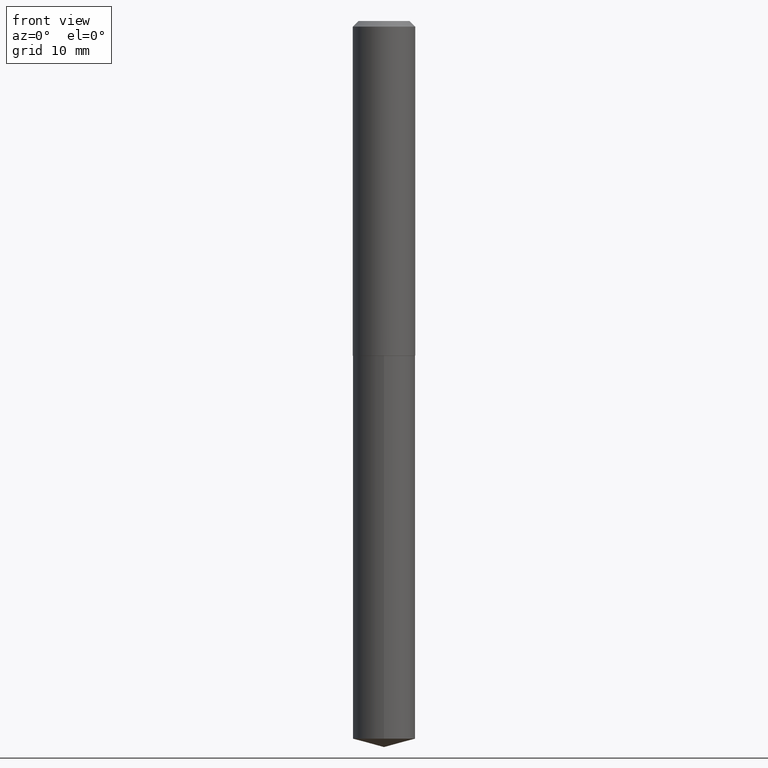
[diagram: clean part render]
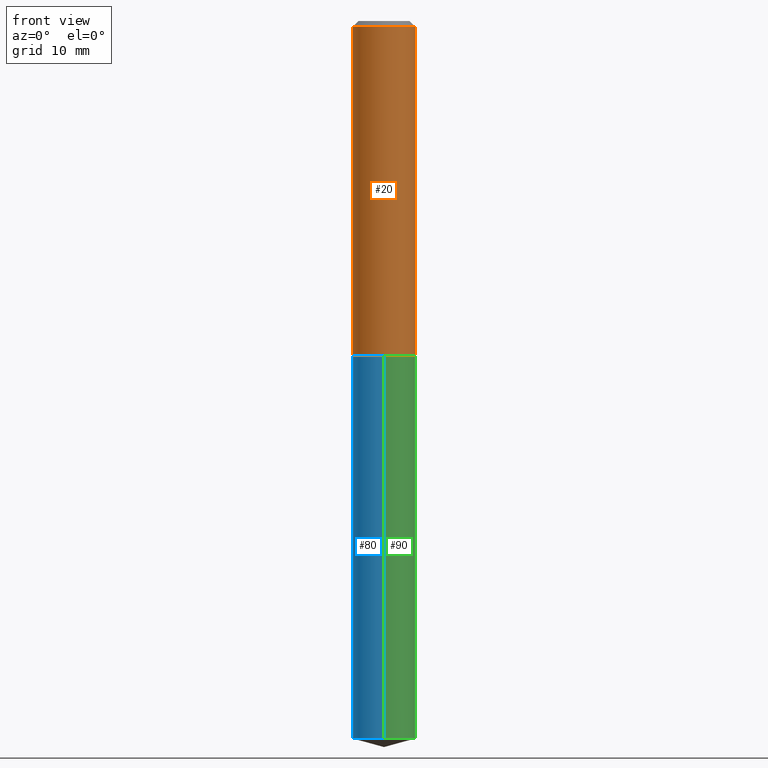
[diagram: same view with three faces highlighted in distinct colors, each labeled with its STEP entity id]
A machine part, front view with three faces highlighted in distinct colors.
Their STEP definitions:

[orange] entity #20 — the highlighted cylindrical surface (edge-blend (fillet) strip) has radius 4.3663 mm, axis along (-0, 0, 1).
#2 = DIRECTION ( 'NONE',  ( 1.000000000000000000, -6.982962677686266711E-15, 4.876176775795936353E-29 ) ) ;
#7 = CARTESIAN_POINT ( 'NONE',  ( 0.1719000000000002193, -7.636218836183839889E-15, -1.843299999999999939 ) ) ;
#20 = ADVANCED_FACE ( 'NONE', ( #214 ), #183, .T. ) ;
#26 = CARTESIAN_POINT ( 'NONE',  ( 0.1719000000000001083, -1.200371284294270030E-15, 8.382147877593220085E-30 ) ) ;
#39 = CARTESIAN_POINT ( 'NONE',  ( -0.1719000000000002193, -5.214424589117957264E-15, -1.843299999999999939 ) ) ;
#51 = DIRECTION ( 'NONE',  ( 1.000000000000000000, -6.982962677686265922E-15, 0.000000000000000000 ) ) ;
#53 = DIRECTION ( 'NONE',  ( -2.445468806185136877E-29, 3.491481338843145188E-15, 1.000000000000000000 ) ) ;
#55 = AXIS2_PLACEMENT_3D ( 'NONE', #307, #153, #2 ) ;
#63 = VECTOR ( 'NONE', #53, 39.37007874015748143 ) ;
#75 = VECTOR ( 'NONE', #253, 39.37007874015748143 ) ;
#92 = DIRECTION ( 'NONE',  ( 1.000000000000000000, -6.982962677686263555E-15, 0.000000000000000000 ) ) ;
#94 = EDGE_CURVE ( 'NONE', #286, #176, #234, .T. ) ;
#95 = AXIS2_PLACEMENT_3D ( 'NONE', #147, #341, #92 ) ;
#107 = EDGE_CURVE ( 'NONE', #239, #176, #354, .T. ) ;
#117 = AXIS2_PLACEMENT_3D ( 'NONE', #291, #238, #51 ) ;
#147 = CARTESIAN_POINT ( 'NONE',  ( 4.507732650441062191E-29, -6.435847551889570648E-15, -1.843299999999999939 ) ) ;
#153 = DIRECTION ( 'NONE',  ( -2.445468806185136597E-29, 3.491481338843145583E-15, 1.000000000000000000 ) ) ;
#176 = VERTEX_POINT ( 'NONE', #245 ) ;
#183 = CYLINDRICAL_SURFACE ( 'NONE', #55, 0.1719000000000001083 ) ;
#214 = FACE_OUTER_BOUND ( 'NONE', #330, .T. ) ;
#215 = CARTESIAN_POINT ( 'NONE',  ( -0.1719000000000001083, 1.221422962771612989E-15, -8.455649420148188785E-30 ) ) ;
#234 = CIRCLE ( 'NONE', #117, 0.1719000000000000250 ) ;
#238 = DIRECTION ( 'NONE',  ( -2.445468806185136597E-29, 3.491481338843145583E-15, 1.000000000000000000 ) ) ;
#239 = VERTEX_POINT ( 'NONE', #7 ) ;
#245 = CARTESIAN_POINT ( 'NONE',  ( 0.1719000000000000250, -1.309480076133118342E-15, -0.03125000000000021511 ) ) ;
#253 = DIRECTION ( 'NONE',  ( -2.445468806185136877E-29, 3.491481338843145188E-15, 1.000000000000000000 ) ) ;
#254 = EDGE_CURVE ( 'NONE', #353, #239, #304, .T. ) ;
#272 = ORIENTED_EDGE ( 'NONE', *, *, #94, .F. ) ;
#278 = LINE ( 'NONE', #215, #75 ) ;
#286 = VERTEX_POINT ( 'NONE', #365 ) ;
#291 = CARTESIAN_POINT ( 'NONE',  ( 7.642090019328604414E-31, -1.091087918388490513E-16, -0.03125000000000021511 ) ) ;
#304 = CIRCLE ( 'NONE', #95, 0.1719000000000002193 ) ;
#307 = CARTESIAN_POINT ( 'NONE',  ( 0.000000000000000000, 0.000000000000000000, 0.000000000000000000 ) ) ;
#322 = ORIENTED_EDGE ( 'NONE', *, *, #107, .T. ) ;
#330 = EDGE_LOOP ( 'NONE', ( #384, #358, #322, #272 ) ) ;
#341 = DIRECTION ( 'NONE',  ( -2.445468806185136597E-29, 3.491481338843145583E-15, 1.000000000000000000 ) ) ;
#342 = EDGE_CURVE ( 'NONE', #353, #286, #278, .T. ) ;
#353 = VERTEX_POINT ( 'NONE', #39 ) ;
#354 = LINE ( 'NONE', #26, #63 ) ;
#358 = ORIENTED_EDGE ( 'NONE', *, *, #254, .T. ) ;
#365 = CARTESIAN_POINT ( 'NONE',  ( -0.1719000000000000250, -2.051055209092595702E-15, -0.03125000000000021511 ) ) ;
#384 = ORIENTED_EDGE ( 'NONE', *, *, #342, .F. ) ;

[blue] entity #80 — the highlighted cylindrical surface (edge-blend (fillet) strip) has radius 4.3663 mm, axis along (-0, 0, 1).
#16 = EDGE_CURVE ( 'NONE', #91, #299, #282, .T. ) ;
#41 = VECTOR ( 'NONE', #219, 39.37007874015748143 ) ;
#49 = CARTESIAN_POINT ( 'NONE',  ( 1.221422962771708835E-15, 0.1718999999999935302, -1.843800000000000328 ) ) ;
#59 = LINE ( 'NONE', #177, #41 ) ;
#66 = CARTESIAN_POINT ( 'NONE',  ( 4.508955384844154993E-29, -6.437593292558991362E-15, -1.843799999999999883 ) ) ;
#80 = ADVANCED_FACE ( 'NONE', ( #356 ), #201, .T. ) ;
#91 = VERTEX_POINT ( 'NONE', #49 ) ;
#108 = CARTESIAN_POINT ( 'NONE',  ( 4.508955384844154993E-29, -6.437593292558991362E-15, -1.843799999999999883 ) ) ;
#112 = ORIENTED_EDGE ( 'NONE', *, *, #164, .T. ) ;
#118 = AXIS2_PLACEMENT_3D ( 'NONE', #198, #166, #343 ) ;
#151 = CARTESIAN_POINT ( 'NONE',  ( 1.221422962771708441E-15, 0.1718999999999861195, -3.953939533821090535 ) ) ;
#162 = CARTESIAN_POINT ( 'NONE',  ( -1.200371284294171620E-15, -0.1719000000000137363, -3.953939533821089647 ) ) ;
#164 = EDGE_CURVE ( 'NONE', #360, #299, #59, .T. ) ;
#165 = EDGE_LOOP ( 'NONE', ( #210, #236, #112, #212 ) ) ;
#166 = DIRECTION ( 'NONE',  ( -2.445467360161043829E-29, 3.491483409631948923E-15, 1.000000000000000000 ) ) ;
#177 = CARTESIAN_POINT ( 'NONE',  ( -1.200371284294223882E-15, -0.1719000000000064365, -1.843799999999999439 ) ) ;
#180 = CARTESIAN_POINT ( 'NONE',  ( -1.200371284294223882E-15, -0.1719000000000064365, -1.843799999999999439 ) ) ;
#184 = CARTESIAN_POINT ( 'NONE',  ( 1.221422962771656968E-15, 0.1718999999999935302, -1.843800000000000328 ) ) ;
#186 = EDGE_CURVE ( 'NONE', #193, #91, #252, .T. ) ;
#189 = DIRECTION ( 'NONE',  ( -2.445467360161043829E-29, 3.491483409631948923E-15, 1.000000000000000000 ) ) ;
#193 = VERTEX_POINT ( 'NONE', #151 ) ;
#198 = CARTESIAN_POINT ( 'NONE',  ( 9.669232740189070983E-29, -1.380511046690382342E-14, -3.953939533821090091 ) ) ;
#201 = CYLINDRICAL_SURFACE ( 'NONE', #327, 0.1718999999999999695 ) ;
#210 = ORIENTED_EDGE ( 'NONE', *, *, #186, .F. ) ;
#212 = ORIENTED_EDGE ( 'NONE', *, *, #16, .F. ) ;
#219 = DIRECTION ( 'NONE',  ( -2.445467360161043829E-29, 3.491483409631948923E-15, 1.000000000000000000 ) ) ;
#227 = AXIS2_PLACEMENT_3D ( 'NONE', #66, #189, #280 ) ;
#236 = ORIENTED_EDGE ( 'NONE', *, *, #366, .T. ) ;
#252 = LINE ( 'NONE', #184, #262 ) ;
#262 = VECTOR ( 'NONE', #270, 39.37007874015748143 ) ;
#270 = DIRECTION ( 'NONE',  ( -2.445467360161043829E-29, 3.491483409631948923E-15, 1.000000000000000000 ) ) ;
#280 = DIRECTION ( 'NONE',  ( -6.982962677686266711E-15, -1.000000000000000000, 3.178415350394722068E-15 ) ) ;
#282 = CIRCLE ( 'NONE', #227, 0.1718999999999999695 ) ;
#289 = CIRCLE ( 'NONE', #118, 0.1718999999999999695 ) ;
#296 = DIRECTION ( 'NONE',  ( -2.445467360161043829E-29, 3.491483409631948923E-15, 1.000000000000000000 ) ) ;
#299 = VERTEX_POINT ( 'NONE', #180 ) ;
#327 = AXIS2_PLACEMENT_3D ( 'NONE', #108, #296, #352 ) ;
#343 = DIRECTION ( 'NONE',  ( -6.982962677686266711E-15, -1.000000000000000000, 3.178415350394722068E-15 ) ) ;
#352 = DIRECTION ( 'NONE',  ( -6.982962677686266711E-15, -1.000000000000000000, 3.178415350394722068E-15 ) ) ;
#356 = FACE_OUTER_BOUND ( 'NONE', #165, .T. ) ;
#360 = VERTEX_POINT ( 'NONE', #162 ) ;
#366 = EDGE_CURVE ( 'NONE', #193, #360, #289, .T. ) ;

[green] entity #90 — the highlighted cylindrical surface (edge-blend (fillet) strip) has radius 4.3663 mm, axis along (-0, 0, 1).
#14 = ORIENTED_EDGE ( 'NONE', *, *, #287, .F. ) ;
#41 = VECTOR ( 'NONE', #219, 39.37007874015748143 ) ;
#49 = CARTESIAN_POINT ( 'NONE',  ( 1.221422962771708835E-15, 0.1718999999999935302, -1.843800000000000328 ) ) ;
#59 = LINE ( 'NONE', #177, #41 ) ;
#60 = ORIENTED_EDGE ( 'NONE', *, *, #186, .T. ) ;
#87 = CARTESIAN_POINT ( 'NONE',  ( 4.508955384844154993E-29, -6.437593292558991362E-15, -1.843799999999999883 ) ) ;
#88 = ORIENTED_EDGE ( 'NONE', *, *, #269, .T. ) ;
#90 = ADVANCED_FACE ( 'NONE', ( #301 ), #321, .T. ) ;
#91 = VERTEX_POINT ( 'NONE', #49 ) ;
#102 = AXIS2_PLACEMENT_3D ( 'NONE', #362, #128, #273 ) ;
#126 = CIRCLE ( 'NONE', #102, 0.1718999999999999695 ) ;
#128 = DIRECTION ( 'NONE',  ( -2.445467360161043829E-29, 3.491483409631948923E-15, 1.000000000000000000 ) ) ;
#143 = DIRECTION ( 'NONE',  ( -6.982962677686266711E-15, -1.000000000000000000, 3.178415350394722068E-15 ) ) ;
#151 = CARTESIAN_POINT ( 'NONE',  ( 1.221422962771708441E-15, 0.1718999999999861195, -3.953939533821090535 ) ) ;
#162 = CARTESIAN_POINT ( 'NONE',  ( -1.200371284294171620E-15, -0.1719000000000137363, -3.953939533821089647 ) ) ;
#164 = EDGE_CURVE ( 'NONE', #360, #299, #59, .T. ) ;
#170 = EDGE_LOOP ( 'NONE', ( #88, #60, #14, #381 ) ) ;
#177 = CARTESIAN_POINT ( 'NONE',  ( -1.200371284294223882E-15, -0.1719000000000064365, -1.843799999999999439 ) ) ;
#180 = CARTESIAN_POINT ( 'NONE',  ( -1.200371284294223882E-15, -0.1719000000000064365, -1.843799999999999439 ) ) ;
#184 = CARTESIAN_POINT ( 'NONE',  ( 1.221422962771656968E-15, 0.1718999999999935302, -1.843800000000000328 ) ) ;
#186 = EDGE_CURVE ( 'NONE', #193, #91, #252, .T. ) ;
#193 = VERTEX_POINT ( 'NONE', #151 ) ;
#219 = DIRECTION ( 'NONE',  ( -2.445467360161043829E-29, 3.491483409631948923E-15, 1.000000000000000000 ) ) ;
#252 = LINE ( 'NONE', #184, #262 ) ;
#260 = DIRECTION ( 'NONE',  ( -2.445467360161043829E-29, 3.491483409631948923E-15, 1.000000000000000000 ) ) ;
#262 = VECTOR ( 'NONE', #270, 39.37007874015748143 ) ;
#269 = EDGE_CURVE ( 'NONE', #360, #193, #126, .T. ) ;
#270 = DIRECTION ( 'NONE',  ( -2.445467360161043829E-29, 3.491483409631948923E-15, 1.000000000000000000 ) ) ;
#273 = DIRECTION ( 'NONE',  ( -6.982962677686266711E-15, -1.000000000000000000, 3.178415350394722068E-15 ) ) ;
#277 = CARTESIAN_POINT ( 'NONE',  ( 4.508955384844154993E-29, -6.437593292558991362E-15, -1.843799999999999883 ) ) ;
#287 = EDGE_CURVE ( 'NONE', #299, #91, #378, .T. ) ;
#299 = VERTEX_POINT ( 'NONE', #180 ) ;
#301 = FACE_OUTER_BOUND ( 'NONE', #170, .T. ) ;
#312 = DIRECTION ( 'NONE',  ( -2.445467360161043829E-29, 3.491483409631948923E-15, 1.000000000000000000 ) ) ;
#320 = AXIS2_PLACEMENT_3D ( 'NONE', #277, #312, #390 ) ;
#321 = CYLINDRICAL_SURFACE ( 'NONE', #372, 0.1718999999999999695 ) ;
#360 = VERTEX_POINT ( 'NONE', #162 ) ;
#362 = CARTESIAN_POINT ( 'NONE',  ( 9.669232740189070983E-29, -1.380511046690382342E-14, -3.953939533821090091 ) ) ;
#372 = AXIS2_PLACEMENT_3D ( 'NONE', #87, #260, #143 ) ;
#378 = CIRCLE ( 'NONE', #320, 0.1718999999999999695 ) ;
#381 = ORIENTED_EDGE ( 'NONE', *, *, #164, .F. ) ;
#390 = DIRECTION ( 'NONE',  ( -6.982962677686266711E-15, -1.000000000000000000, 3.178415350394722068E-15 ) ) ;